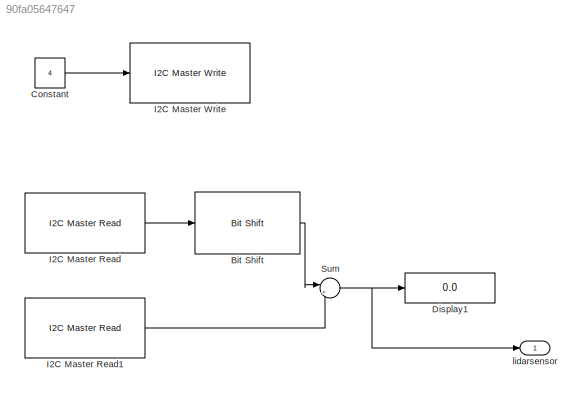
MODEL slx_90fa05647647
KIND model
CONFIG AbsTol = auto
CONFIG EnableMultiTasking = on
CONFIG FixedStep = 1/40
CONFIG MaxStep = auto
CONFIG MinStep = auto
CONFIG RelTol = 1e-3
CONFIG SampleTimeConstraint = Unconstrained
CONFIG Solver = FixedStepAuto
CONFIG SolverName = FixedStepAuto
CONFIG StartTime = 0.0
CONFIG StopTime = inf
BLOCK [Reference] Bit Shift  REF=hdlsllib/HDL Operations/Bit Shift
  Ports = [1, 1]
  SourceBlock = hdlsllib/HDL Operations/Bit Shift
  SourceProductBaseCode = HD
  SourceProductName = HDL Coder
  SourceType = Bit Shift
BLOCK [Constant] Constant
  Value = 4
BLOCK [Display] Display1
  Decimation = 1
  Ports = [1]
BLOCK [Reference] I2C Master Read  REF=raspberrypilib/I2C Master Read
  Ports = [0, 1]
  SourceBlock = raspberrypilib/I2C Master Read
  SourceProductBaseCode = RASPPI
  SourceProductName = Simulink Support Package for Raspberry Pi Hardware
  SourceType = codertarget.raspi.internal.I2CMasterRead
BLOCK [Reference] I2C Master Read1  REF=raspberrypilib/I2C Master Read
  Ports = [0, 1]
  SourceBlock = raspberrypilib/I2C Master Read
  SourceProductBaseCode = RASPPI
  SourceProductName = Simulink Support Package for Raspberry Pi Hardware
  SourceType = codertarget.raspi.internal.I2CMasterRead
BLOCK [Reference] I2C Master Write  REF=raspberrypilib/I2C Master Write
  Ports = [1]
  SourceBlock = raspberrypilib/I2C Master Write
  SourceProductBaseCode = RASPPI
  SourceProductName = Simulink Support Package for Raspberry Pi Hardware
  SourceType = codertarget.raspi.internal.I2CMasterWrite
BLOCK [Sum] Sum
  IconShape = round
  InputSameDT = off
  Inputs = |++
  OutDataTypeStr = Inherit: Inherit via internal rule
  Ports = [2, 1]
  SaturateOnIntegerOverflow = off
BLOCK [Outport] lidarsensor
  IconDisplay = Port number
  SampleTime = 1/40
LINE Bit Shift:1 -> Sum:1
LINE Constant:1 -> I2C Master Write:1
LINE I2C Master Read1:1 -> Sum:2
LINE I2C Master Read:1 -> Bit Shift:1
NET Sum:1 -> Display1:1, lidarsensor:1
note: NET lines group one-source signal fan-out (src -> all destinations, sorted); 1:1 wires keep LINE
